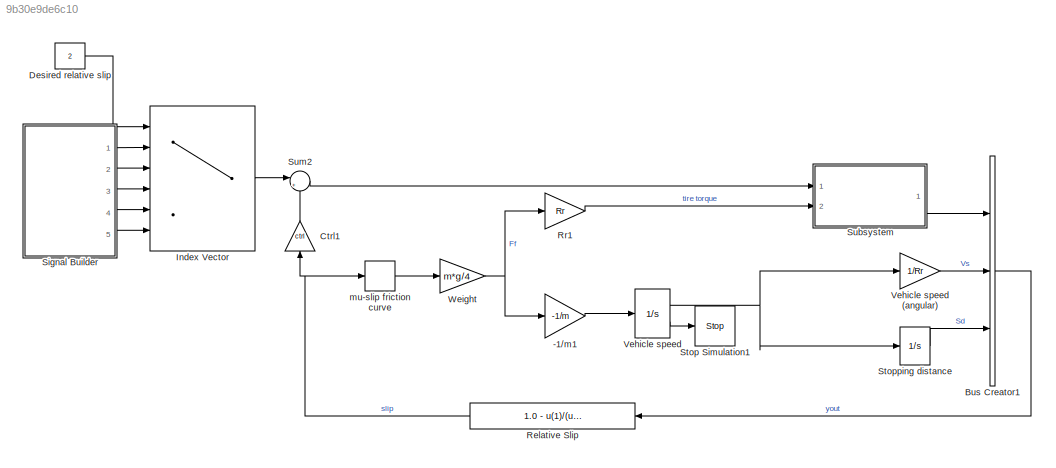
MODEL slx_9b30e9de6c10
KIND model
CONFIG AbsTol = auto
CONFIG EnableMultiTasking = off
CONFIG FixedStep = auto
CONFIG MaxStep = auto
CONFIG MinStep = auto
CONFIG PreLoadFcn = model_param
CONFIG RelTol = 1e-3
CONFIG SampleTimeConstraint = Unconstrained
CONFIG SolverName = ode113
CONFIG StartTime = 0.0
CONFIG StopTime = 25
BLOCK [Gain] -1//m1
  Gain = -1/m
  OutDataTypeStr = Inherit: Same as input
  ParamDataTypeStr = Inherit: Same as input
  SaturateOnIntegerOverflow = on
BLOCK [BusCreator] Bus Creator1
  DisplayOption = bar
  InheritFromInputs = on
  Inputs = 3
  Ports = [3, 1]
BLOCK [Gain] Ctrl1
  Gain = ctrl
  NameLocation = left
  OutDataTypeStr = Inherit: Same as input
  ParamDataTypeStr = Inherit: Same as input
  SaturateOnIntegerOverflow = on
BLOCK [Constant] Desired relative slip
  Value = 2
BLOCK [MultiPortSwitch] Index Vector
  DataPortOrder = Zero-based contiguous
  InputSameDT = off
  Inputs = 5
  Ports = [6, 1]
  SaturateOnIntegerOverflow = off
  zeroidx = on
BLOCK [Fcn] Relative Slip
  Expr = 1.0 - u(1)/(u(2) + (u(2)==0)*eps)
BLOCK [Gain] Rr1
  Gain = Rr
  OutDataTypeStr = Inherit: Same as input
  ParamDataTypeStr = Inherit: Same as input
  SaturateOnIntegerOverflow = on
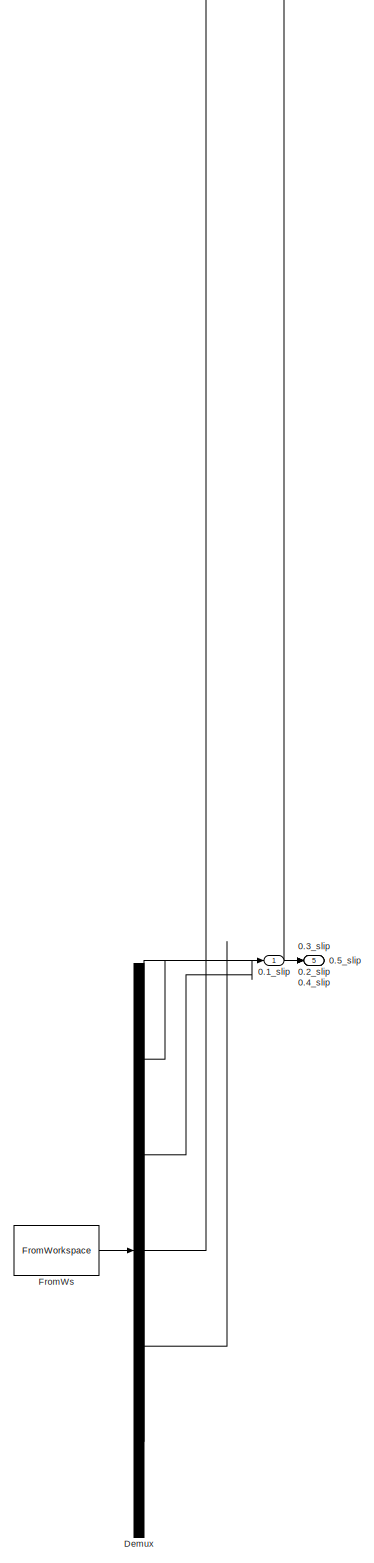
[diagram: Signal Builder - part 1/1, full width, bottom band]
BLOCK [SubSystem] Signal Builder
  ClipboardFcn = sigbuilder_block('clipboard');
  CloseFcn = sigbuilder_block('close');
  ContinueFcn = sigbuilder_block('continue');
  CopyFcn = sigbuilder_block('copy');
  DeleteFcn = sigbuilder_block('delete');
  LoadFcn = sigbuilder_block('load');
  MaskHideContents = on
  ModelCloseFcn = sigbuilder_block('modelClose');
  NameChangeFcn = sigbuilder_block('namechange');
  OpenFcn = sigbuilder_block('open',[336.6 127.2 550.8 400.2 ]);
  PauseFcn = sigbuilder_block('pause');
  Ports = [0, 5]
  PreSaveFcn = sigbuilder_block('preSave');
  RequestExecContextInheritance = off
  StartFcn = sigbuilder_block('start');
  StopFcn = sigbuilder_block('stop');
  Tag = STV Subsys
BLOCK [Outport] Signal Builder/0.1_slip
  Tag = STV Outport
BLOCK [Outport] Signal Builder/0.2_slip
  Port = 2
  Tag = STV Outport
BLOCK [Outport] Signal Builder/0.3_slip
  Port = 3
  Tag = STV Outport
BLOCK [Outport] Signal Builder/0.4_slip
  Port = 4
  Tag = STV Outport
BLOCK [Outport] Signal Builder/0.5_slip
  Port = 5
  Tag = STV Outport
BLOCK [Demux] Signal Builder/Demux
  DisplayOption = none
  Outputs = 5
  Ports = [1, 5]
  Tag = STV Demux
BLOCK [FromWorkspace] Signal Builder/FromWs
  Tag = STV FromWs
  VariableName = tuvar
BLOCK [Stop] Stop Simulation1
BLOCK [Integrator] Stopping distance
  LowerSaturationLimit = 0
  Ports = [1, 1]
  UpperSaturationLimit = 1000
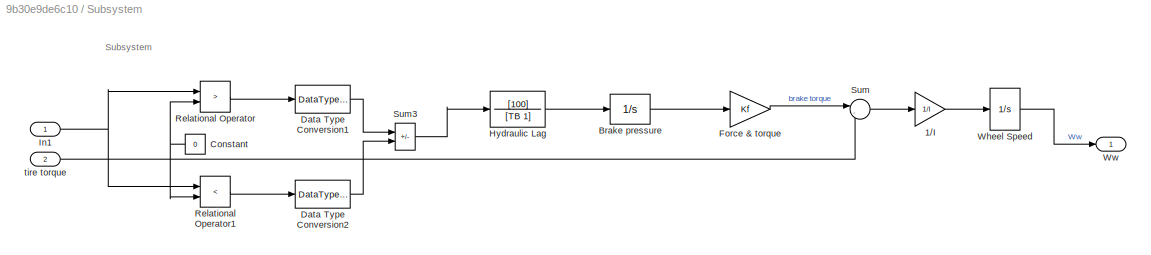
BLOCK [SubSystem] Subsystem
  Ports = [2, 1]
  RequestExecContextInheritance = off
BLOCK [Gain] Subsystem/1//I
  Gain = 1/I
  OutDataTypeStr = Inherit: Same as input
  ParamDataTypeStr = Inherit: Same as input
  SaturateOnIntegerOverflow = on
BLOCK [Integrator] Subsystem/Brake pressure
  LimitOutput = on
  LowerSaturationLimit = 0
  Ports = [1, 1]
  UpperSaturationLimit = PBmax
BLOCK [Constant] Subsystem/Constant
  NameLocation = top
  Value = 0
BLOCK [DataTypeConversion] Subsystem/Data Type Conversion1
  OutDataTypeStr = double
BLOCK [DataTypeConversion] Subsystem/Data Type Conversion2
  OutDataTypeStr = double
BLOCK [Gain] Subsystem/Force & torque
  Gain = Kf
  OutDataTypeStr = Inherit: Same as input
  ParamDataTypeStr = Inherit: Same as input
  SaturateOnIntegerOverflow = on
BLOCK [TransferFcn] Subsystem/Hydraulic Lag 
  Denominator = [TB 1]
  Numerator = [100]
BLOCK [Inport] Subsystem/In1
BLOCK [RelationalOperator] Subsystem/Relational Operator
  Operator = >
  OutDataTypeStr = boolean
  Ports = [2, 1]
BLOCK [RelationalOperator] Subsystem/Relational Operator1
  Operator = <
  OutDataTypeStr = boolean
  Ports = [2, 1]
BLOCK [Sum] Subsystem/Sum
  InputSameDT = on
  Inputs = |-+
  OutDataTypeStr = Inherit: Same as first input
  Ports = [2, 1]
  SaturateOnIntegerOverflow = on
BLOCK [Sum] Subsystem/Sum3
  IconShape = rectangular
  InputSameDT = on
  Inputs = +-
  OutDataTypeStr = Inherit: Same as first input
  Ports = [2, 1]
  SaturateOnIntegerOverflow = on
BLOCK [Integrator] Subsystem/Wheel Speed
  InitialCondition = v0/Rr
  LimitOutput = on
  LowerSaturationLimit = 0
  Ports = [1, 1]
  UpperSaturationLimit = 1000
BLOCK [Outport] Subsystem/Ww
BLOCK [Inport] Subsystem/tire torque
  Port = 2
BLOCK [Sum] Sum2
  InputSameDT = on
  Inputs = |+-
  OutDataTypeStr = Inherit: Same as first input
  Ports = [2, 1]
  SaturateOnIntegerOverflow = on
BLOCK [Integrator] Vehicle speed
  InitialCondition = v0
  LimitOutput = on
  LowerSaturationLimit = 0
  Ports = [1, 2]
  ShowSaturationPort = on
  UpperSaturationLimit = 1000
BLOCK [Gain] Vehicle speed (angular)
  Gain = 1/Rr
  OutDataTypeStr = Inherit: Same as input
  ParamDataTypeStr = Inherit: Same as input
  SaturateOnIntegerOverflow = on
BLOCK [Gain] Weight
  Gain = m*g/4
  OutDataTypeStr = Inherit: Same as input
  ParamDataTypeStr = Inherit: Same as input
  SaturateOnIntegerOverflow = on
BLOCK [Lookup_n-D] mu-slip friction curve
  BreakpointsForDimension1 = slip
  InputPortMap = u0
  NumberOfTableDimensions = 1
  Ports = [1, 1]
  SaturateOnIntegerOverflow = on
  Table = mu
ANNOTATION Subsystem: Subsystem
LINE -1//m1:1 -> Vehicle speed:1
LINE Bus Creator1:1 -> Relative Slip:1
LINE Ctrl1:1 -> Sum2:2
LINE Desired relative slip:1 -> Index Vector:1
LINE Index Vector:1 -> Sum2:1
NET Relative Slip:1 -> Ctrl1:1, mu-slip friction curve:1
LINE Rr1:1 -> Subsystem:2
LINE Signal Builder:1 -> Index Vector:2
LINE Signal Builder:2 -> Index Vector:3
LINE Signal Builder:3 -> Index Vector:4
LINE Signal Builder:4 -> Index Vector:5
LINE Signal Builder:5 -> Index Vector:6
LINE Stopping distance:1 -> Bus Creator1:3
LINE Subsystem/1//I:1 -> Subsystem/Wheel Speed:1
LINE Subsystem/Brake pressure:1 -> Subsystem/Force & torque:1
NET Subsystem/Constant:1 -> Subsystem/Relational Operator1:2, Subsystem/Relational Operator:2
LINE Subsystem/Data Type Conversion1:1 -> Subsystem/Sum3:1
LINE Subsystem/Data Type Conversion2:1 -> Subsystem/Sum3:2
LINE Subsystem/Force & torque:1 -> Subsystem/Sum:1
LINE Subsystem/Hydraulic Lag :1 -> Subsystem/Brake pressure:1
NET Subsystem/In1:1 -> Subsystem/Relational Operator1:1, Subsystem/Relational Operator:1
LINE Subsystem/Relational Operator1:1 -> Subsystem/Data Type Conversion2:1
LINE Subsystem/Relational Operator:1 -> Subsystem/Data Type Conversion1:1
LINE Subsystem/Sum3:1 -> Subsystem/Hydraulic Lag :1
LINE Subsystem/Sum:1 -> Subsystem/1//I:1
LINE Subsystem/Wheel Speed:1 -> Subsystem/Ww:1
LINE Subsystem/tire torque:1 -> Subsystem/Sum:2
LINE Subsystem:1 -> Bus Creator1:1
LINE Sum2:1 -> Subsystem:1
LINE Vehicle speed (angular):1 -> Bus Creator1:2
NET Vehicle speed:1 -> Stopping distance:1, Vehicle speed (angular):1
LINE Vehicle speed:2 -> Stop Simulation1:1
NET Weight:1 -> -1//m1:1, Rr1:1
LINE mu-slip friction curve:1 -> Weight:1
note: NET lines group one-source signal fan-out (src -> all destinations, sorted); 1:1 wires keep LINE
